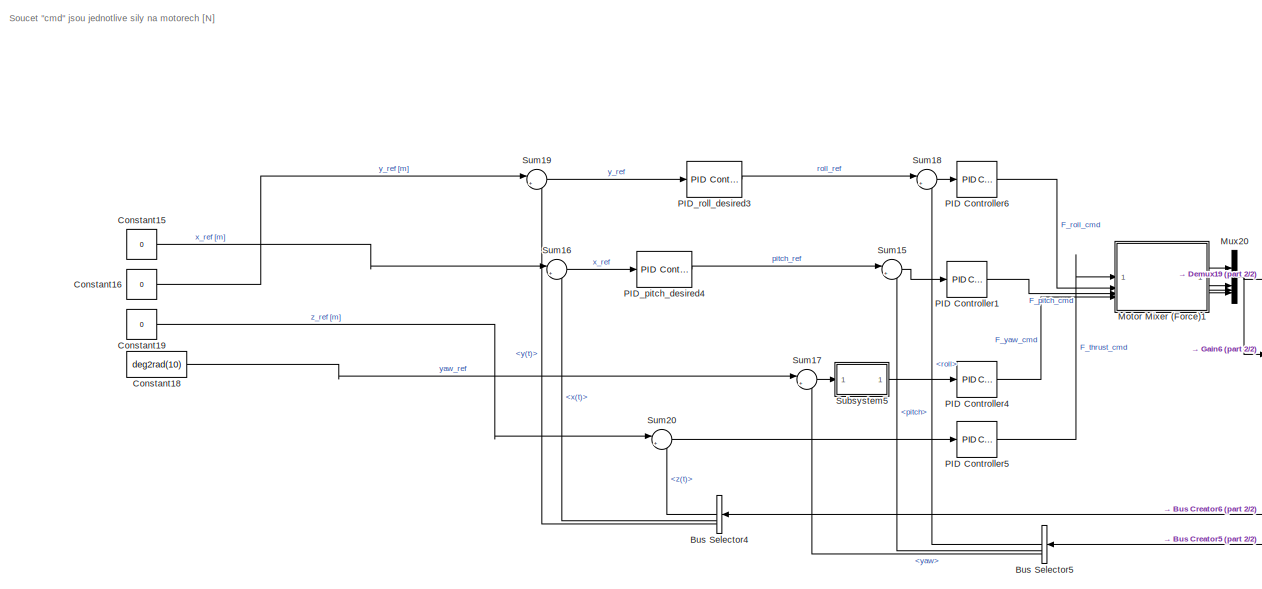
[diagram: root canvas - part 1/2, left side, full height]
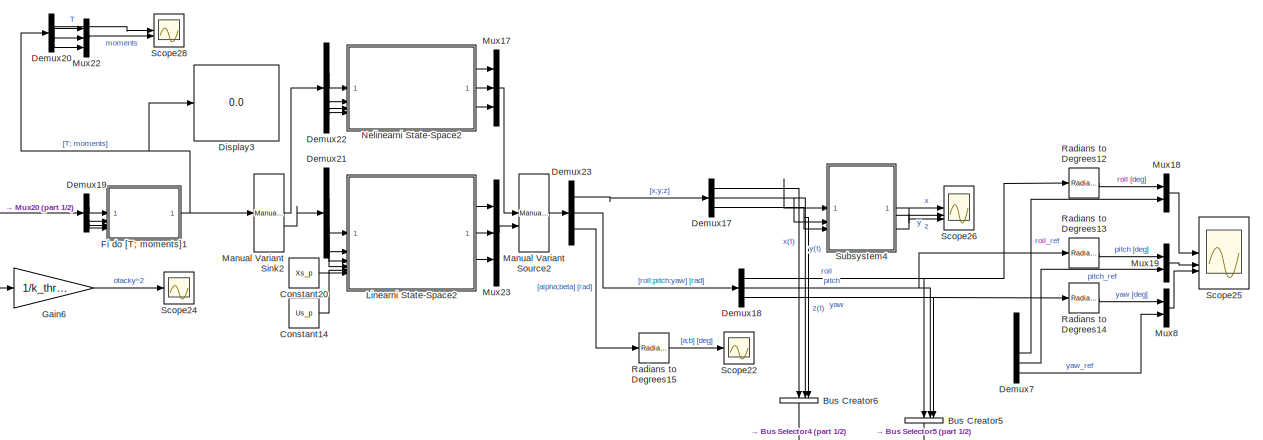
[diagram: root canvas - part 2/2, middle right region]
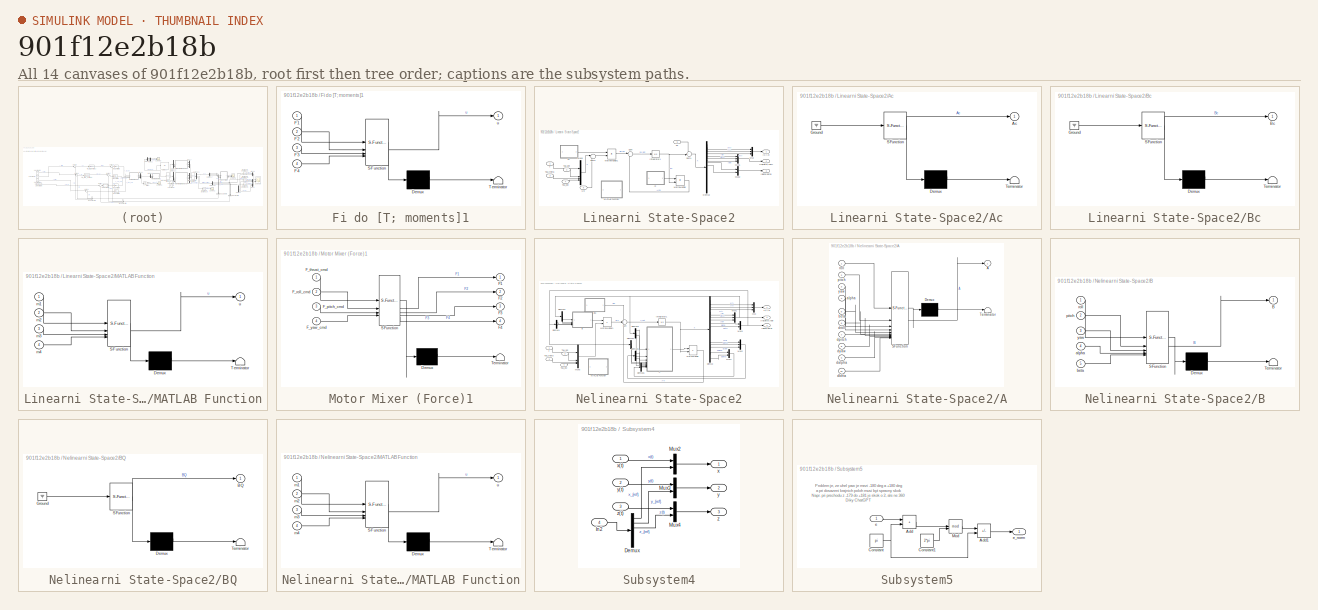
[diagram: thumbnail index - all 14 canvases of the model, root first then tree order]
MODEL slx_901f12e2b18b
KIND model
CONFIG AbsTol = auto
CONFIG EnableMultiTasking = off
CONFIG FixedStep = 0.01
CONFIG MaxStep = auto
CONFIG MinStep = auto
CONFIG RelTol = 1e-3
CONFIG SampleTimeConstraint = Unconstrained
CONFIG SolverName = ode4
CONFIG StartTime = 0.0
CONFIG StopTime = 30
BLOCK [BusCreator] Bus Creator5
  DisplayOption = bar
  InheritFromInputs = on
  Inputs = 3
  NameLocation = left
BLOCK [BusCreator] Bus Creator6
  DisplayOption = bar
  InheritFromInputs = on
  Inputs = 3
  NameLocation = left
BLOCK [BusSelector] Bus Selector4
  NameLocation = top
  OutputSignals = z(t),x(t),y(t)
BLOCK [BusSelector] Bus Selector5
  NameLocation = left
  OutputSignals = roll,pitch,yaw
BLOCK [Constant] Constant14
  Value = Us_p
BLOCK [Constant] Constant15
  Value = 0
BLOCK [Constant] Constant16
  Value = 0
BLOCK [Constant] Constant18
  Value = deg2rad(10)
BLOCK [Constant] Constant19
  Value = 0
BLOCK [Constant] Constant20
  Value = Xs_p
BLOCK [Demux] Demux17
  Outputs = 3
BLOCK [Demux] Demux18
  Outputs = 3
BLOCK [Demux] Demux19
BLOCK [Demux] Demux20
BLOCK [Demux] Demux21
BLOCK [Demux] Demux22
BLOCK [Demux] Demux23
  Outputs = 3
BLOCK [Demux] Demux7
  Outputs = 6
BLOCK [Display] Display3
  Decimation = 1
BLOCK [SubSystem] Fi do [T; moments]1
  ErrorFcn = Stateflow.Translate.translate
  PermitHierarchicalResolution = ExplicitOnly
  SFBlockType = MATLAB Function
  TreatAsAtomicUnit = on
BLOCK [Demux] Fi do [T; moments]1/ Demux 
  Outputs = 1
BLOCK [S-Function] Fi do [T; moments]1/ SFunction 
  EnableBusSupport = on
  FunctionName = sf_sfun
  Parameters = b_moment,k_thrust,l
  PortCounts = [4 2]
  SFcnIsStateOwnerBlock = off
  SFunctionDeploymentMode = off
  Tag = Stateflow S-Function 12
BLOCK [Terminator] Fi do [T; moments]1/ Terminator 
BLOCK [Inport] Fi do [T; moments]1/F1
BLOCK [Inport] Fi do [T; moments]1/F2
  Port = 2
BLOCK [Inport] Fi do [T; moments]1/F3
  Port = 3
BLOCK [Inport] Fi do [T; moments]1/F4
  Port = 4
BLOCK [Outport] Fi do [T; moments]1/u
BLOCK [Gain] Gain6
  Gain = 1/k_thrust
BLOCK [SubSystem] Linearni State-Space2
BLOCK [SubSystem] Linearni State-Space2/Ac
  ErrorFcn = Stateflow.Translate.translate
  PermitHierarchicalResolution = ExplicitOnly
  SFBlockType = MATLAB Function
  TreatAsAtomicUnit = on
BLOCK [Demux] Linearni State-Space2/Ac/ Demux 
  Outputs = 1
BLOCK [Ground] Linearni State-Space2/Ac/ Ground 
BLOCK [S-Function] Linearni State-Space2/Ac/ SFunction 
  EnableBusSupport = on
  FunctionName = sf_sfun
  Parameters = M,d,g,m
  PortCounts = [1 2]
  SFcnIsStateOwnerBlock = off
  SFunctionDeploymentMode = off
  Tag = Stateflow S-Function 18
BLOCK [Terminator] Linearni State-Space2/Ac/ Terminator 
BLOCK [Outport] Linearni State-Space2/Ac/Ac
BLOCK [SubSystem] Linearni State-Space2/Bc
  ErrorFcn = Stateflow.Translate.translate
  PermitHierarchicalResolution = ExplicitOnly
  SFBlockType = MATLAB Function
  TreatAsAtomicUnit = on
BLOCK [Demux] Linearni State-Space2/Bc/ Demux 
  Outputs = 1
BLOCK [Ground] Linearni State-Space2/Bc/ Ground 
BLOCK [S-Function] Linearni State-Space2/Bc/ SFunction 
  EnableBusSupport = on
  FunctionName = sf_sfun
  Parameters = Ixx,Iyy,Izz,M,m
  PortCounts = [1 2]
  SFcnIsStateOwnerBlock = off
  SFunctionDeploymentMode = off
  Tag = Stateflow S-Function 20
BLOCK [Terminator] Linearni State-Space2/Bc/ Terminator 
BLOCK [Outport] Linearni State-Space2/Bc/Bc
BLOCK [Demux] Linearni State-Space2/Demux
  Outputs = 16
BLOCK [Integrator] Linearni State-Space2/Integrator1
  InitialCondition = Xinit_ss
BLOCK [SubSystem] Linearni State-Space2/MATLAB Function
  Commented = on
  ErrorFcn = Stateflow.Translate.translate
  PermitHierarchicalResolution = ExplicitOnly
  SFBlockType = MATLAB Function
  TreatAsAtomicUnit = on
BLOCK [Demux] Linearni State-Space2/MATLAB Function/ Demux 
  Outputs = 1
BLOCK [S-Function] Linearni State-Space2/MATLAB Function/ SFunction 
  EnableBusSupport = on
  FunctionName = sf_sfun
  Parameters = b_moment,k_thrust,l
  PortCounts = [4 2]
  SFcnIsStateOwnerBlock = off
  SFunctionDeploymentMode = off
  Tag = Stateflow S-Function 25
BLOCK [Terminator] Linearni State-Space2/MATLAB Function/ Terminator 
BLOCK [Inport] Linearni State-Space2/MATLAB Function/m1
BLOCK [Inport] Linearni State-Space2/MATLAB Function/m2
  Port = 2
BLOCK [Inport] Linearni State-Space2/MATLAB Function/m3
  Port = 3
BLOCK [Inport] Linearni State-Space2/MATLAB Function/m4
  Port = 4
BLOCK [Outport] Linearni State-Space2/MATLAB Function/u
BLOCK [Product] Linearni State-Space2/MatrixMultiply
  Multiplication = Matrix(*)
BLOCK [Product] Linearni State-Space2/MatrixMultiply1
  Multiplication = Matrix(*)
BLOCK [Mux] Linearni State-Space2/Mux
  DisplayOption = bar
  Inputs = 3
BLOCK [Mux] Linearni State-Space2/Mux1
  DisplayOption = bar
  Inputs = 3
BLOCK [Mux] Linearni State-Space2/Mux2
  DisplayOption = bar
  Inputs = 2
BLOCK [Mux] Linearni State-Space2/Mux5
  DisplayOption = bar
BLOCK [Sum] Linearni State-Space2/Sum
  Inputs = |++
BLOCK [Sum] Linearni State-Space2/Sum1
  Inputs = ++|
BLOCK [Sum] Linearni State-Space2/Sum2
  Inputs = |+-
BLOCK [Inport] Linearni State-Space2/T
BLOCK [Inport] Linearni State-Space2/Tau_phi
  Port = 2
BLOCK [Inport] Linearni State-Space2/Tau_psi
  Port = 4
BLOCK [Inport] Linearni State-Space2/Tau_theta
  Port = 3
BLOCK [Inport] Linearni State-Space2/U0
  Port = 6
BLOCK [Inport] Linearni State-Space2/X0
  Port = 5
BLOCK [Outport] Linearni State-Space2/[alpha;beta]
  Port = 3
BLOCK [Outport] Linearni State-Space2/[roll;pitch;yaw]
  Port = 2
BLOCK [Outport] Linearni State-Space2/[x;y;z]
BLOCK [Reference] Manual Variant Sink2  REF=simulink/Signal
Routing/Manual
Variant Sink
  SourceBlock = simulink/Signal\nRouting/Manual\nVariant Sink
  SourceType = ManualVariantSink
BLOCK [Reference] Manual Variant Source2  REF=simulink/Signal
Routing/Manual
Variant Source
  SourceBlock = simulink/Signal\nRouting/Manual\nVariant Source
  SourceType = ManualVariantSource
BLOCK [SubSystem] Motor Mixer (Force)1
  ErrorFcn = Stateflow.Translate.translate
  PermitHierarchicalResolution = ExplicitOnly
  SFBlockType = MATLAB Function
  TreatAsAtomicUnit = on
BLOCK [Demux] Motor Mixer (Force)1/ Demux 
  Outputs = 1
BLOCK [S-Function] Motor Mixer (Force)1/ SFunction 
  EnableBusSupport = on
  FunctionName = sf_sfun
  PortCounts = [4 5]
  SFcnIsStateOwnerBlock = off
  SFunctionDeploymentMode = off
  Tag = Stateflow S-Function 26
BLOCK [Terminator] Motor Mixer (Force)1/ Terminator 
BLOCK [Outport] Motor Mixer (Force)1/F1
BLOCK [Outport] Motor Mixer (Force)1/F2
  Port = 2
BLOCK [Outport] Motor Mixer (Force)1/F3
  Port = 3
BLOCK [Outport] Motor Mixer (Force)1/F4
  Port = 4
BLOCK [Inport] Motor Mixer (Force)1/F_pitch_cmd
  Port = 3
BLOCK [Inport] Motor Mixer (Force)1/F_roll_cmd
  Port = 2
BLOCK [Inport] Motor Mixer (Force)1/F_thrust_cmd
BLOCK [Inport] Motor Mixer (Force)1/F_yaw_cmd
  Port = 4
BLOCK [Mux] Mux17
  DisplayOption = bar
  Inputs = 3
BLOCK [Mux] Mux18
  DisplayOption = bar
  Inputs = 2
BLOCK [Mux] Mux19
  DisplayOption = bar
  Inputs = 2
BLOCK [Mux] Mux20
  DisplayOption = bar
BLOCK [Mux] Mux22
  DisplayOption = bar
  Inputs = 3
BLOCK [Mux] Mux23
  DisplayOption = bar
  Inputs = 3
BLOCK [Mux] Mux8
  DisplayOption = bar
  Inputs = 2
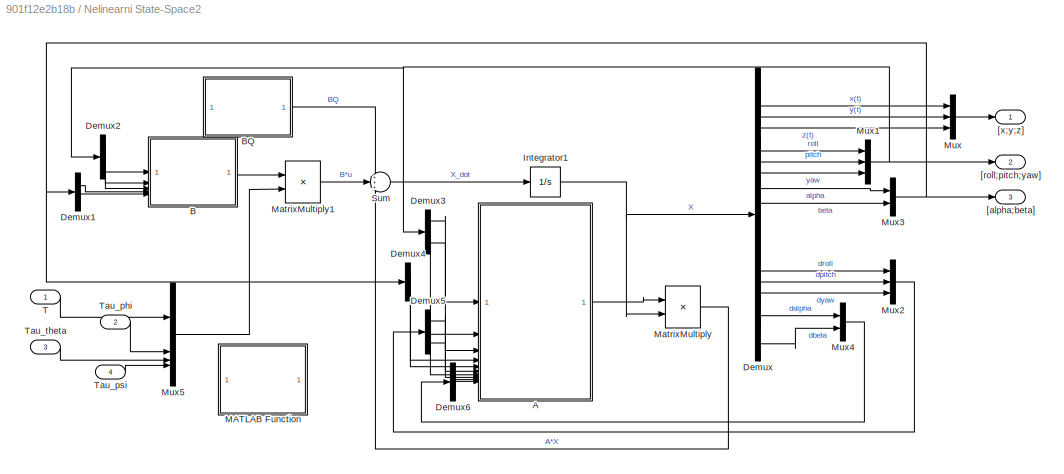
BLOCK [SubSystem] Nelinearni State-Space2
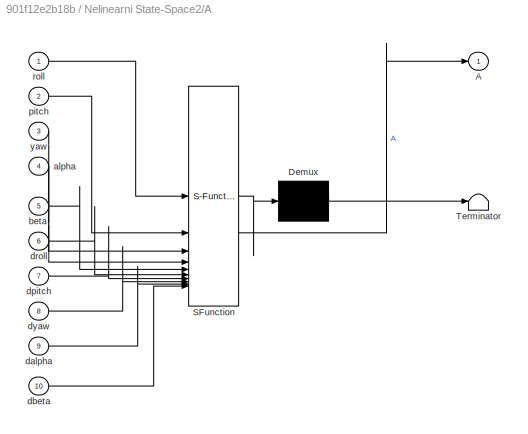
BLOCK [SubSystem] Nelinearni State-Space2/A
  ErrorFcn = Stateflow.Translate.translate
  PermitHierarchicalResolution = ExplicitOnly
  SFBlockType = MATLAB Function
  TreatAsAtomicUnit = on
BLOCK [Demux] Nelinearni State-Space2/A/ Demux 
  Outputs = 1
BLOCK [S-Function] Nelinearni State-Space2/A/ SFunction 
  EnableBusSupport = on
  FunctionName = sf_sfun
  Parameters = Ip,Ixx,Iyy,Izz,M,d,m
  PortCounts = [10 2]
  SFcnIsStateOwnerBlock = off
  SFunctionDeploymentMode = off
  Tag = Stateflow S-Function 27
BLOCK [Terminator] Nelinearni State-Space2/A/ Terminator 
BLOCK [Outport] Nelinearni State-Space2/A/A
BLOCK [Inport] Nelinearni State-Space2/A/alpha
  Port = 4
BLOCK [Inport] Nelinearni State-Space2/A/beta
  Port = 5
BLOCK [Inport] Nelinearni State-Space2/A/dalpha
  Port = 9
BLOCK [Inport] Nelinearni State-Space2/A/dbeta
  Port = 10
BLOCK [Inport] Nelinearni State-Space2/A/dpitch
  Port = 7
BLOCK [Inport] Nelinearni State-Space2/A/droll
  Port = 6
BLOCK [Inport] Nelinearni State-Space2/A/dyaw
  Port = 8
BLOCK [Inport] Nelinearni State-Space2/A/pitch
  Port = 2
BLOCK [Inport] Nelinearni State-Space2/A/roll
BLOCK [Inport] Nelinearni State-Space2/A/yaw
  Port = 3
BLOCK [SubSystem] Nelinearni State-Space2/B
  ErrorFcn = Stateflow.Translate.translate
  PermitHierarchicalResolution = ExplicitOnly
  SFBlockType = MATLAB Function
  TreatAsAtomicUnit = on
BLOCK [Demux] Nelinearni State-Space2/B/ Demux 
  Outputs = 1
BLOCK [S-Function] Nelinearni State-Space2/B/ SFunction 
  EnableBusSupport = on
  FunctionName = sf_sfun
  Parameters = Ip,Ixx,Iyy,Izz,M,d,m
  PortCounts = [5 2]
  SFcnIsStateOwnerBlock = off
  SFunctionDeploymentMode = off
  Tag = Stateflow S-Function 28
BLOCK [Terminator] Nelinearni State-Space2/B/ Terminator 
BLOCK [Outport] Nelinearni State-Space2/B/B
BLOCK [Inport] Nelinearni State-Space2/B/alpha
  Port = 4
BLOCK [Inport] Nelinearni State-Space2/B/beta
  Port = 5
BLOCK [Inport] Nelinearni State-Space2/B/pitch
  Port = 2
BLOCK [Inport] Nelinearni State-Space2/B/roll
BLOCK [Inport] Nelinearni State-Space2/B/yaw
  Port = 3
BLOCK [SubSystem] Nelinearni State-Space2/BQ
  ErrorFcn = Stateflow.Translate.translate
  PermitHierarchicalResolution = ExplicitOnly
  SFBlockType = MATLAB Function
  TreatAsAtomicUnit = on
BLOCK [Demux] Nelinearni State-Space2/BQ/ Demux 
  Outputs = 1
BLOCK [Ground] Nelinearni State-Space2/BQ/ Ground 
BLOCK [S-Function] Nelinearni State-Space2/BQ/ SFunction 
  EnableBusSupport = on
  FunctionName = sf_sfun
  Parameters = g
  PortCounts = [1 2]
  SFcnIsStateOwnerBlock = off
  SFunctionDeploymentMode = off
  Tag = Stateflow S-Function 29
BLOCK [Terminator] Nelinearni State-Space2/BQ/ Terminator 
BLOCK [Outport] Nelinearni State-Space2/BQ/BQ
BLOCK [Demux] Nelinearni State-Space2/Demux
  Outputs = 16
BLOCK [Demux] Nelinearni State-Space2/Demux1
  Outputs = 2
BLOCK [Demux] Nelinearni State-Space2/Demux2
  Outputs = 3
BLOCK [Demux] Nelinearni State-Space2/Demux3
  Outputs = 3
BLOCK [Demux] Nelinearni State-Space2/Demux4
  Outputs = 2
BLOCK [Demux] Nelinearni State-Space2/Demux5
  Outputs = 3
BLOCK [Demux] Nelinearni State-Space2/Demux6
  Outputs = 2
BLOCK [Integrator] Nelinearni State-Space2/Integrator1
  InitialCondition = Xinit_ss
BLOCK [SubSystem] Nelinearni State-Space2/MATLAB Function
  Commented = on
  ErrorFcn = Stateflow.Translate.translate
  PermitHierarchicalResolution = ExplicitOnly
  SFBlockType = MATLAB Function
  TreatAsAtomicUnit = on
BLOCK [Demux] Nelinearni State-Space2/MATLAB Function/ Demux 
  Outputs = 1
BLOCK [S-Function] Nelinearni State-Space2/MATLAB Function/ SFunction 
  EnableBusSupport = on
  FunctionName = sf_sfun
  Parameters = L,b_moment,k_thrust
  PortCounts = [4 2]
  SFcnIsStateOwnerBlock = off
  SFunctionDeploymentMode = off
  Tag = Stateflow S-Function 30
BLOCK [Terminator] Nelinearni State-Space2/MATLAB Function/ Terminator 
BLOCK [Inport] Nelinearni State-Space2/MATLAB Function/m1
BLOCK [Inport] Nelinearni State-Space2/MATLAB Function/m2
  Port = 2
BLOCK [Inport] Nelinearni State-Space2/MATLAB Function/m3
  Port = 3
BLOCK [Inport] Nelinearni State-Space2/MATLAB Function/m4
  Port = 4
BLOCK [Outport] Nelinearni State-Space2/MATLAB Function/u
BLOCK [Product] Nelinearni State-Space2/MatrixMultiply
  Multiplication = Matrix(*)
BLOCK [Product] Nelinearni State-Space2/MatrixMultiply1
  Multiplication = Matrix(*)
BLOCK [Mux] Nelinearni State-Space2/Mux
  DisplayOption = bar
  Inputs = 3
BLOCK [Mux] Nelinearni State-Space2/Mux1
  DisplayOption = bar
  Inputs = 3
BLOCK [Mux] Nelinearni State-Space2/Mux2
  DisplayOption = bar
  Inputs = 3
BLOCK [Mux] Nelinearni State-Space2/Mux3
  DisplayOption = bar
  Inputs = 2
BLOCK [Mux] Nelinearni State-Space2/Mux4
  DisplayOption = bar
  Inputs = 2
BLOCK [Mux] Nelinearni State-Space2/Mux5
  DisplayOption = bar
BLOCK [Sum] Nelinearni State-Space2/Sum
  Inputs = +++
BLOCK [Inport] Nelinearni State-Space2/T
BLOCK [Inport] Nelinearni State-Space2/Tau_phi
  Port = 2
BLOCK [Inport] Nelinearni State-Space2/Tau_psi
  Port = 4
BLOCK [Inport] Nelinearni State-Space2/Tau_theta
  Port = 3
BLOCK [Outport] Nelinearni State-Space2/[alpha;beta]
  Port = 3
BLOCK [Outport] Nelinearni State-Space2/[roll;pitch;yaw]
  Port = 2
BLOCK [Outport] Nelinearni State-Space2/[x;y;z]
BLOCK [Reference] PID Controller1  REF=slpidlib/PID Controller
  LibrarySourceBlock = simulink/Continuous/PID Controller
  SourceBlock = slpidlib/PID Controller
  SourceType = PID 1dof
BLOCK [Reference] PID Controller4  REF=slpidlib/PID Controller
  LibrarySourceBlock = simulink/Continuous/PID Controller
  SourceBlock = slpidlib/PID Controller
  SourceType = PID 1dof
BLOCK [Reference] PID Controller5  REF=slpidlib/PID Controller
  LibrarySourceBlock = simulink/Continuous/PID Controller
  SourceBlock = slpidlib/PID Controller
  SourceType = PID 1dof
BLOCK [Reference] PID Controller6  REF=slpidlib/PID Controller
  LibrarySourceBlock = simulink/Continuous/PID Controller
  SourceBlock = slpidlib/PID Controller
  SourceType = PID 1dof
BLOCK [Reference] PID_pitch_desired4  REF=slpidlib/PID Controller
  LibrarySourceBlock = simulink/Continuous/PID Controller
  SourceBlock = slpidlib/PID Controller
  SourceType = PID 1dof
BLOCK [Reference] PID_roll_desired3  REF=slpidlib/PID Controller
  LibrarySourceBlock = simulink/Continuous/PID Controller
  SourceBlock = slpidlib/PID Controller
  SourceType = PID 1dof
BLOCK [Reference] Radians to Degrees12  REF=simulink_extras/Transformations/Radians
to Degrees
  SourceBlock = simulink_extras/Transformations/Radians\nto Degrees
  SourceType = RadiansToDegrees
BLOCK [Reference] Radians to Degrees13  REF=simulink_extras/Transformations/Radians
to Degrees
  SourceBlock = simulink_extras/Transformations/Radians\nto Degrees
  SourceType = RadiansToDegrees
BLOCK [Reference] Radians to Degrees14  REF=simulink_extras/Transformations/Radians
to Degrees
  SourceBlock = simulink_extras/Transformations/Radians\nto Degrees
  SourceType = RadiansToDegrees
BLOCK [Reference] Radians to Degrees15  REF=simulink_extras/Transformations/Radians
to Degrees
  SourceBlock = simulink_extras/Transformations/Radians\nto Degrees
  SourceType = RadiansToDegrees
BLOCK [Scope] Scope22
  Floating = off
  NumInputPorts = 1
  ScopeSpecificationString = Simulink.scopes.TimeScopeBlockCfg('CurrentConfiguration', extmgr.ConfigurationSet(extmgr.Configuration('Core','General UI',true),extmgr.Configuration('Core','Source UI',true),extmgr.Configuration('Sources','WiredSimulink',true,'DataLoggingVariableName','ScopeData3'),extmgr.Configuration('Visuals','Time Domain',true,'SerializedDisplays',{struct('MinYLimReal','-34.52754','MaxYLimReal','30.83601','YL...<+1554ch>
BLOCK [Scope] Scope24
  Floating = off
  NumInputPorts = 1
  ScopeSpecificationString = Simulink.scopes.TimeScopeBlockCfg('CurrentConfiguration', extmgr.ConfigurationSet(extmgr.Configuration('Core','General UI',true),extmgr.Configuration('Core','Source UI',true),extmgr.Configuration('Sources','WiredSimulink',true,'DataLoggingVariableName','ScopeData5'),extmgr.Configuration('Visuals','Time Domain',true,'SerializedDisplays',{struct('MinYLimReal','-1107.28841','MaxYLimReal','5617.7696',...<+1588ch>
BLOCK [Scope] Scope25
  Floating = off
  NumInputPorts = 3
  ScopeSpecificationString = Simulink.scopes.TimeScopeBlockCfg('CurrentConfiguration', extmgr.ConfigurationSet(extmgr.Configuration('Core','General UI',true),extmgr.Configuration('Core','Source UI',true),extmgr.Configuration('Sources','WiredSimulink',true,'DataLoggingVariableName','ScopeData6'),extmgr.Configuration('Visuals','Time Domain',true,'PlotType','Stairs','SerializedDisplays',{struct('MinYLimReal','-3.82092','MaxYLimR...<+3215ch>
BLOCK [Scope] Scope26
  Floating = off
  NumInputPorts = 3
  ScopeSpecificationString = Simulink.scopes.TimeScopeBlockCfg('CurrentConfiguration', extmgr.ConfigurationSet(extmgr.Configuration('Core','General UI',true,'FigureColor',[0 0 0]),extmgr.Configuration('Core','Source UI',true),extmgr.Configuration('Sources','WiredSimulink',true,'DataLoggingVariableName','ScopeData7'),extmgr.Configuration('Visuals','Time Domain',true,'PlotType','Stairs','SerializedDisplays',{struct('MinYLimReal...<+3508ch>
BLOCK [Scope] Scope28
  Floating = off
  NumInputPorts = 2
  ScopeSpecificationString = Simulink.scopes.TimeScopeBlockCfg('CurrentConfiguration', extmgr.ConfigurationSet(extmgr.Configuration('Core','General UI',true),extmgr.Configuration('Core','Source UI',true),extmgr.Configuration('Sources','WiredSimulink',true,'DataLoggingVariableName','ScopeData9'),extmgr.Configuration('Visuals','Time Domain',true,'SerializedDisplays',{struct('MinYLimReal','5.11401','MaxYLimReal','38.09844','YLab...<+2283ch>
BLOCK [SubSystem] Subsystem4
BLOCK [Demux] Subsystem4/Demux
  Outputs = 6
BLOCK [Inport] Subsystem4/In2
  Port = 4
BLOCK [Mux] Subsystem4/Mux2
  DisplayOption = bar
  Inputs = 2
BLOCK [Mux] Subsystem4/Mux3
  DisplayOption = bar
  Inputs = 2
BLOCK [Mux] Subsystem4/Mux4
  DisplayOption = bar
  Inputs = 2
BLOCK [Outport] Subsystem4/x
BLOCK [Inport] Subsystem4/x(t)
BLOCK [Outport] Subsystem4/y
  Port = 2
BLOCK [Inport] Subsystem4/y(t)
  Port = 2
BLOCK [Outport] Subsystem4/z
  Port = 3
BLOCK [Inport] Subsystem4/z(t)
  Port = 3
BLOCK [SubSystem] Subsystem5
BLOCK [Sum] Subsystem5/Add
  IconShape = rectangular
BLOCK [Sum] Subsystem5/Add1
  IconShape = rectangular
  Inputs = +-
BLOCK [Constant] Subsystem5/Constant
  Value = pi
BLOCK [Constant] Subsystem5/Constant1
  Value = 2*pi
BLOCK [Math] Subsystem5/Mod
  Operator = mod
BLOCK [Inport] Subsystem5/e
BLOCK [Outport] Subsystem5/e_norm
BLOCK [Sum] Sum15
  Inputs = |+-
BLOCK [Sum] Sum16
  Inputs = |+-
BLOCK [Sum] Sum17
  Inputs = |+-
BLOCK [Sum] Sum18
  Inputs = |+-
BLOCK [Sum] Sum19
  Inputs = |+-
BLOCK [Sum] Sum20
  Inputs = |+-
ANNOTATION (root): Soucet "cmd" jsou jednotlive sily na motorech [N]
ANNOTATION Subsystem5: Problem je, ze uhel yaw je mezi -180 deg a +180 deg a pri dosazeni krajnich poloh musi byt spravny skok Napr. pri prechodu z -179 do +181 je skok o 2, ale ne 360 Diky ChatGPT
LINE Bus Creator5:1 -> Bus Selector5:1
LINE Bus Creator6:1 -> Bus Selector4:1
LINE Bus Selector4:1 -> Sum20:2
LINE Bus Selector4:2 -> Sum16:2
LINE Bus Selector4:3 -> Sum19:2
LINE Bus Selector5:1 -> Sum18:2
LINE Bus Selector5:2 -> Sum15:2
LINE Bus Selector5:3 -> Sum17:2
LINE Constant14:1 -> Linearni State-Space2:6
LINE Constant15:1 -> Sum16:1
LINE Constant16:1 -> Sum19:1
LINE Constant18:1 -> Sum17:1
LINE Constant19:1 -> Sum20:1
LINE Constant20:1 -> Linearni State-Space2:5
NET Demux17:1 -> Bus Creator6:1, Subsystem4:1
NET Demux17:2 -> Bus Creator6:2, Subsystem4:2
NET Demux17:3 -> Bus Creator6:3, Subsystem4:3
NET Demux18:1 -> Bus Creator5:1, Radians to Degrees12:1
NET Demux18:2 -> Bus Creator5:2, Radians to Degrees13:1
NET Demux18:3 -> Bus Creator5:3, Radians to Degrees14:1
LINE Demux19:1 -> Fi do [T; moments]1:1
LINE Demux19:2 -> Fi do [T; moments]1:2
LINE Demux19:3 -> Fi do [T; moments]1:3
LINE Demux19:4 -> Fi do [T; moments]1:4
LINE Demux20:1 -> Scope28:1
LINE Demux20:2 -> Mux22:1
LINE Demux20:3 -> Mux22:2
LINE Demux20:4 -> Mux22:3
LINE Demux21:1 -> Linearni State-Space2:1
LINE Demux21:2 -> Linearni State-Space2:2
LINE Demux21:3 -> Linearni State-Space2:3
LINE Demux21:4 -> Linearni State-Space2:4
LINE Demux22:1 -> Nelinearni State-Space2:1
LINE Demux22:2 -> Nelinearni State-Space2:2
LINE Demux22:3 -> Nelinearni State-Space2:3
LINE Demux22:4 -> Nelinearni State-Space2:4
LINE Demux23:1 -> Demux17:1
LINE Demux23:2 -> Demux18:1
LINE Demux23:3 -> Radians to Degrees15:1
LINE Demux7:4 -> Mux18:2
LINE Demux7:5 -> Mux19:2
LINE Demux7:6 -> Mux8:2
NET Fi do [T; moments]1:1 -> Demux20:1, Display3:1, Manual Variant Sink2:1
LINE Gain6:1 -> Scope24:1
LINE Linearni State-Space2/Ac:1 -> Linearni State-Space2/MatrixMultiply:1
LINE Linearni State-Space2/Bc:1 -> Linearni State-Space2/MatrixMultiply1:1
LINE Linearni State-Space2/Demux:1 -> Linearni State-Space2/Mux:1
LINE Linearni State-Space2/Demux:2 -> Linearni State-Space2/Mux:2
LINE Linearni State-Space2/Demux:3 -> Linearni State-Space2/Mux:3
LINE Linearni State-Space2/Demux:4 -> Linearni State-Space2/Mux1:1
LINE Linearni State-Space2/Demux:5 -> Linearni State-Space2/Mux1:2
LINE Linearni State-Space2/Demux:6 -> Linearni State-Space2/Mux1:3
LINE Linearni State-Space2/Demux:7 -> Linearni State-Space2/Mux2:1
LINE Linearni State-Space2/Demux:8 -> Linearni State-Space2/Mux2:2
NET Linearni State-Space2/Integrator1:1 -> Linearni State-Space2/MatrixMultiply:2, Linearni State-Space2/Sum1:2
LINE Linearni State-Space2/MatrixMultiply1:1 -> Linearni State-Space2/Sum:1
LINE Linearni State-Space2/MatrixMultiply:1 -> Linearni State-Space2/Sum:2
LINE Linearni State-Space2/Mux1:1 -> Linearni State-Space2/[roll;pitch;yaw]:1
LINE Linearni State-Space2/Mux2:1 -> Linearni State-Space2/[alpha;beta]:1
LINE Linearni State-Space2/Mux5:1 -> Linearni State-Space2/Sum2:1
LINE Linearni State-Space2/Mux:1 -> Linearni State-Space2/[x;y;z]:1
LINE Linearni State-Space2/Sum1:1 -> Linearni State-Space2/Demux:1
LINE Linearni State-Space2/Sum2:1 -> Linearni State-Space2/MatrixMultiply1:2
LINE Linearni State-Space2/Sum:1 -> Linearni State-Space2/Integrator1:1
LINE Linearni State-Space2/T:1 -> Linearni State-Space2/Mux5:1
LINE Linearni State-Space2/Tau_phi:1 -> Linearni State-Space2/Mux5:2
LINE Linearni State-Space2/Tau_psi:1 -> Linearni State-Space2/Mux5:4
LINE Linearni State-Space2/Tau_theta:1 -> Linearni State-Space2/Mux5:3
LINE Linearni State-Space2/U0:1 -> Linearni State-Space2/Sum2:2
LINE Linearni State-Space2/X0:1 -> Linearni State-Space2/Sum1:1
LINE Linearni State-Space2:1 -> Mux23:1
LINE Linearni State-Space2:2 -> Mux23:2
LINE Linearni State-Space2:3 -> Mux23:3
LINE Manual Variant Sink2:1 -> Demux22:1
LINE Manual Variant Sink2:2 -> Demux21:1
LINE Manual Variant Source2:1 -> Demux23:1
LINE Motor Mixer (Force)1:1 -> Mux20:1
LINE Motor Mixer (Force)1:2 -> Mux20:2
LINE Motor Mixer (Force)1:3 -> Mux20:3
LINE Motor Mixer (Force)1:4 -> Mux20:4
LINE Mux17:1 -> Manual Variant Source2:1
LINE Mux18:1 -> Scope25:1
LINE Mux19:1 -> Scope25:2
NET Mux20:1 -> Demux19:1, Gain6:1
LINE Mux22:1 -> Scope28:2
LINE Mux23:1 -> Manual Variant Source2:2
LINE Mux8:1 -> Scope25:3
LINE Nelinearni State-Space2/A:1 -> Nelinearni State-Space2/MatrixMultiply:1
LINE Nelinearni State-Space2/B:1 -> Nelinearni State-Space2/MatrixMultiply1:1
LINE Nelinearni State-Space2/BQ:1 -> Nelinearni State-Space2/Sum:1
LINE Nelinearni State-Space2/Demux1:1 -> Nelinearni State-Space2/B:4
LINE Nelinearni State-Space2/Demux1:2 -> Nelinearni State-Space2/B:5
LINE Nelinearni State-Space2/Demux2:1 -> Nelinearni State-Space2/B:1
LINE Nelinearni State-Space2/Demux2:2 -> Nelinearni State-Space2/B:2
LINE Nelinearni State-Space2/Demux2:3 -> Nelinearni State-Space2/B:3
LINE Nelinearni State-Space2/Demux3:1 -> Nelinearni State-Space2/A:1
LINE Nelinearni State-Space2/Demux3:2 -> Nelinearni State-Space2/A:2
LINE Nelinearni State-Space2/Demux3:3 -> Nelinearni State-Space2/A:3
LINE Nelinearni State-Space2/Demux4:1 -> Nelinearni State-Space2/A:4
LINE Nelinearni State-Space2/Demux4:2 -> Nelinearni State-Space2/A:5
LINE Nelinearni State-Space2/Demux5:1 -> Nelinearni State-Space2/A:6
LINE Nelinearni State-Space2/Demux5:2 -> Nelinearni State-Space2/A:7
LINE Nelinearni State-Space2/Demux5:3 -> Nelinearni State-Space2/A:8
LINE Nelinearni State-Space2/Demux6:1 -> Nelinearni State-Space2/A:9
LINE Nelinearni State-Space2/Demux6:2 -> Nelinearni State-Space2/A:10
LINE Nelinearni State-Space2/Demux:1 -> Nelinearni State-Space2/Mux:1
LINE Nelinearni State-Space2/Demux:12 -> Nelinearni State-Space2/Mux2:1
LINE Nelinearni State-Space2/Demux:13 -> Nelinearni State-Space2/Mux2:2
LINE Nelinearni State-Space2/Demux:14 -> Nelinearni State-Space2/Mux2:3
LINE Nelinearni State-Space2/Demux:15 -> Nelinearni State-Space2/Mux4:1
LINE Nelinearni State-Space2/Demux:16 -> Nelinearni State-Space2/Mux4:2
LINE Nelinearni State-Space2/Demux:2 -> Nelinearni State-Space2/Mux:2
LINE Nelinearni State-Space2/Demux:3 -> Nelinearni State-Space2/Mux:3
LINE Nelinearni State-Space2/Demux:4 -> Nelinearni State-Space2/Mux1:1
LINE Nelinearni State-Space2/Demux:5 -> Nelinearni State-Space2/Mux1:2
LINE Nelinearni State-Space2/Demux:6 -> Nelinearni State-Space2/Mux1:3
LINE Nelinearni State-Space2/Demux:7 -> Nelinearni State-Space2/Mux3:1
LINE Nelinearni State-Space2/Demux:8 -> Nelinearni State-Space2/Mux3:2
NET Nelinearni State-Space2/Integrator1:1 -> Nelinearni State-Space2/Demux:1, Nelinearni State-Space2/MatrixMultiply:2
LINE Nelinearni State-Space2/MatrixMultiply1:1 -> Nelinearni State-Space2/Sum:2
LINE Nelinearni State-Space2/MatrixMultiply:1 -> Nelinearni State-Space2/Sum:3
NET Nelinearni State-Space2/Mux1:1 -> Nelinearni State-Space2/Demux2:1, Nelinearni State-Space2/Demux3:1, Nelinearni State-Space2/[roll;pitch;yaw]:1
LINE Nelinearni State-Space2/Mux2:1 -> Nelinearni State-Space2/Demux5:1
NET Nelinearni State-Space2/Mux3:1 -> Nelinearni State-Space2/Demux1:1, Nelinearni State-Space2/Demux4:1, Nelinearni State-Space2/[alpha;beta]:1
LINE Nelinearni State-Space2/Mux4:1 -> Nelinearni State-Space2/Demux6:1
LINE Nelinearni State-Space2/Mux5:1 -> Nelinearni State-Space2/MatrixMultiply1:2
LINE Nelinearni State-Space2/Mux:1 -> Nelinearni State-Space2/[x;y;z]:1
LINE Nelinearni State-Space2/Sum:1 -> Nelinearni State-Space2/Integrator1:1
LINE Nelinearni State-Space2/T:1 -> Nelinearni State-Space2/Mux5:1
LINE Nelinearni State-Space2/Tau_phi:1 -> Nelinearni State-Space2/Mux5:2
LINE Nelinearni State-Space2/Tau_psi:1 -> Nelinearni State-Space2/Mux5:4
LINE Nelinearni State-Space2/Tau_theta:1 -> Nelinearni State-Space2/Mux5:3
LINE Nelinearni State-Space2:1 -> Mux17:1
LINE Nelinearni State-Space2:2 -> Mux17:2
LINE Nelinearni State-Space2:3 -> Mux17:3
LINE PID Controller1:1 -> Motor Mixer (Force)1:3
LINE PID Controller4:1 -> Motor Mixer (Force)1:4
LINE PID Controller5:1 -> Motor Mixer (Force)1:1
LINE PID Controller6:1 -> Motor Mixer (Force)1:2
LINE PID_pitch_desired4:1 -> Sum15:1
LINE PID_roll_desired3:1 -> Sum18:1
LINE Radians to Degrees12:1 -> Mux18:1
LINE Radians to Degrees13:1 -> Mux19:1
LINE Radians to Degrees14:1 -> Mux8:1
LINE Radians to Degrees15:1 -> Scope22:1
LINE Subsystem4/Demux:1 -> Subsystem4/Mux2:2
LINE Subsystem4/Demux:2 -> Subsystem4/Mux3:2
LINE Subsystem4/Demux:3 -> Subsystem4/Mux4:2
LINE Subsystem4/In2:1 -> Subsystem4/Demux:1
LINE Subsystem4/Mux2:1 -> Subsystem4/x:1
LINE Subsystem4/Mux3:1 -> Subsystem4/y:1
LINE Subsystem4/Mux4:1 -> Subsystem4/z:1
LINE Subsystem4/x(t):1 -> Subsystem4/Mux2:1
LINE Subsystem4/y(t):1 -> Subsystem4/Mux3:1
LINE Subsystem4/z(t):1 -> Subsystem4/Mux4:1
LINE Subsystem4:1 -> Scope26:1
LINE Subsystem4:2 -> Scope26:2
LINE Subsystem4:3 -> Scope26:3
LINE Subsystem5/Add1:1 -> Subsystem5/e_norm:1
LINE Subsystem5/Add:1 -> Subsystem5/Mod:1
LINE Subsystem5/Constant1:1 -> Subsystem5/Mod:2
NET Subsystem5/Constant:1 -> Subsystem5/Add1:2, Subsystem5/Add:2
LINE Subsystem5/Mod:1 -> Subsystem5/Add1:1
LINE Subsystem5/e:1 -> Subsystem5/Add:1
LINE Subsystem5:1 -> PID Controller4:1
LINE Sum15:1 -> PID Controller1:1
LINE Sum16:1 -> PID_pitch_desired4:1
LINE Sum17:1 -> Subsystem5:1
LINE Sum18:1 -> PID Controller6:1
LINE Sum19:1 -> PID_roll_desired3:1
LINE Sum20:1 -> PID Controller5:1
note: NET lines group one-source signal fan-out (src -> all destinations, sorted); 1:1 wires keep LINE
CHART Nelinearni State-Space2/B states=1 transitions=1
  STATE_LABEL 'eML_blk_kernel()'
  STATE_LABEL 'SCRIPT:\nfunction B = fcn(roll, pitch, yaw, alpha, beta, M, Ixx, Iyy, Izz, Ip, d, m)\n% Matice vstupu do soustavy kvadrokoptery se zavazim\n\nphi_t = roll;\ntheta_t = pitch;\npsi_t = yaw;\n\nalpha_t = alpha;\nbeta_t = beta;\n\nB = [ \n                                                                                                                                                                                 ...<+3608ch>'
CHART Nelinearni State-Space2/BQ states=1 transitions=1
  STATE_LABEL 'eML_blk_kernel()'
  STATE_LABEL "SCRIPT:\nfunction BQ = fcn(g)\n% Matice vstupu tihy\nBQ = [0 0 0 0 0 0 0 0 0 0 -g 0 0 0 0 0]';"
CHART Nelinearni State-Space2/MATLAB Function states=1 transitions=1
  STATE_LABEL 'eML_blk_kernel()'
  STATE_LABEL 'SCRIPT:\nfunction u = fcn(m1, m2, m3, m4, k_thrust, b_moment, L)\n\nThrust = k_thrust*(m1^2 + m2^2 + m3^2 + m4^2);\nTau_roll = L*k_thrust*(m1^2 + m4^2 - m2^2 - m3^2);\nTau_pitch = L*k_thrust*(m4^2 + m3^2 - m1^2 - m2^2);\nTau_yaw = b_moment*(m1^2 + m3^2 - m2^2 - m4^2);\n\nu = [Thrust; Tau_roll; Tau_pitch; Tau_yaw];\n'
CHART Fi do [T; moments]1 states=1 transitions=1
  STATE_LABEL 'eML_blk_kernel()'
  STATE_LABEL 'SCRIPT:\nfunction u = fcn(F1, F2, F3, F4, k_thrust, b_moment, l)\n% Dle X tvaru kvadrokoptery dopocitavam \n% celkovou tahovou silu T a tri momenty\nT = F1+F2+F3+F4;\nTau_phi = l*(F1+F4-F2-F3);\nTau_theta = l*(F3+F4-F1-F2);\nTau_psi = b_moment/k_thrust*(F1-F2+F3-F4);\n\nu = [T; Tau_phi; Tau_theta; Tau_psi];\n'
CHART Linearni State-Space2/Ac states=1 transitions=1
  STATE_LABEL 'eML_blk_kernel()'
  STATE_LABEL 'SCRIPT:\nfunction Ac = fcn(g, M, m, d)\n% Matice Ac linearizovana kvadrokoptera+zavazi\n\nAc = [\n0, 0, 0,                 0,                  0, 0,                  0,                  0, 1, 0, 0, 0, 0, 0, 0, 0;\n0, 0, 0,                 0,                  0, 0,                  0,                  0, 0, 1, 0, 0, 0, 0, 0, 0;\n0, 0, 0,                 0,                  0, 0,                  0,       ...<+1538ch>'
CHART Linearni State-Space2/Bc states=1 transitions=1
  STATE_LABEL 'eML_blk_kernel()'
  STATE_LABEL 'SCRIPT:\nfunction Bc = fcn(M, Ixx, Iyy, Izz, m)\n% Matice Bc linearizovana\n\nBc = [\n        0,     0,     0,     0;\n        0,     0,     0,     0;\n        0,     0,     0,     0;\n        0,     0,     0,     0;\n        0,     0,     0,     0;\n        0,     0,     0,     0;\n        0,     0,     0,     0;\n        0,     0,     0,     0;\n        0,     0,     0,     0;\n        0,     0,     0,     0;...<+194ch>'
CHART Linearni State-Space2/MATLAB Function states=1 transitions=1
  STATE_LABEL 'eML_blk_kernel()'
  STATE_LABEL 'SCRIPT:\nfunction u = fcn(m1, m2, m3, m4, k_thrust, b_moment, l)\n\nThrust = k_thrust*(m1^2 + m2^2 + m3^2 + m4^2);\nTau_roll = l*k_thrust*(m1^2 + m4^2 - m2^2 - m3^2);\nTau_pitch = l*k_thrust*(m4^2 + m3^2 - m1^2 - m2^2);\nTau_yaw = b_moment*(m1^2 + m3^2 - m2^2 - m4^2);\n\nu = [Thrust; Tau_roll; Tau_pitch; Tau_yaw];\n'
CHART Motor Mixer (Force)1 states=1 transitions=1
  STATE_LABEL 'eML_blk_kernel()'
  STATE_LABEL 'SCRIPT:\nfunction [F1, F2, F3, F4] = fcn(F_thrust_cmd, F_roll_cmd, F_pitch_cmd, F_yaw_cmd)\n\n% _cmd definuji jednotlive tahove sily Ti na motorech\n% -> lze jednoduse prepocitat na nutne otacky\nF1 = F_thrust_cmd+F_roll_cmd-F_pitch_cmd+F_yaw_cmd; %[N]\nF2 = F_thrust_cmd-F_roll_cmd-F_pitch_cmd-F_yaw_cmd;\nF3 = F_thrust_cmd-F_roll_cmd+F_pitch_cmd+F_yaw_cmd;\nF4 = F_thrust_cmd+F_roll_cmd+F_pitch_cmd-F_yaw_c...<+3ch>'
CHART Nelinearni State-Space2/A states=1 transitions=1
  STATE_LABEL 'eML_blk_kernel()'
  STATE_LABEL 'SCRIPT:\nfunction A = fcn(roll, pitch, yaw, alpha, beta, droll, dpitch, dyaw, dalpha, dbeta, Ixx, Iyy, Izz, M, Ip, d, m)\n% Matice dynamiky A\n\nphi_t = roll;\ntheta_t = pitch;\npsi_t = yaw;\n\nalpha_t = alpha;\nbeta_t = beta;\n\nphi_dot_t = droll;\ntheta_dot_t = dpitch;\npsi_dot_t = dyaw;\n\nalpha_dot_t = dalpha;\nbeta_dot_t = dbeta;\n\nA = [ \n0, 0, 0, 0, 0, 0, 0, 0, 1, 0, 0,                                       ...<+3608ch>'
CHART  states=0 transitions=0
CHART  states=0 transitions=0
CHART  states=0 transitions=0
CHART  states=0 transitions=0
CHART  states=0 transitions=0
CHART  states=0 transitions=0
CHART  states=0 transitions=0
CHART  states=0 transitions=0
CHART  states=0 transitions=0
